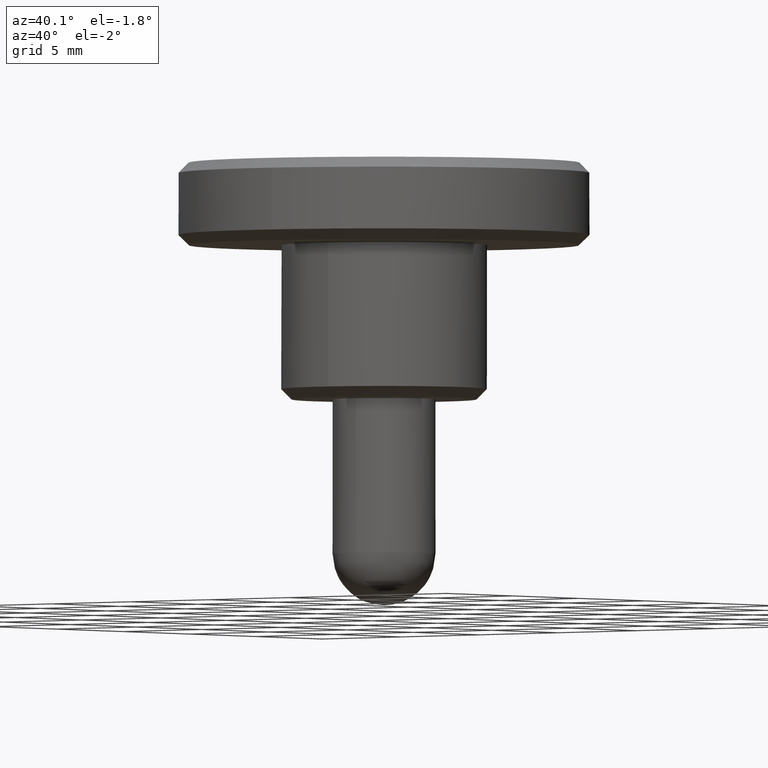
[diagram: clean part render]
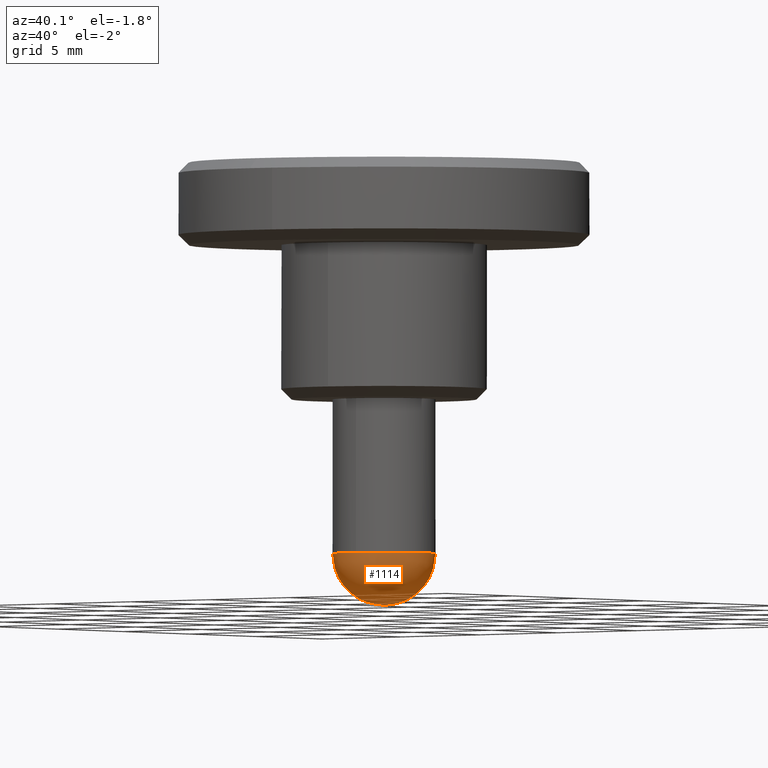
[diagram: same view with one face highlighted and labeled with its STEP entity id]
A machine part, auxiliary view. The second image highlights one B-rep face of the part: STEP entity #1114.
In plain terms, the highlighted face is a freeform B-spline surface patch.
Its self-contained STEP definition (entity closure, byte-faithful):
#695=CARTESIAN_POINT('',(0.310320005214538,-2.480665534561975,-7.500000000000000));
#696=VERTEX_POINT('',#695);
#697=CARTESIAN_POINT('',(2.500000000000000,0.0,-7.500000000000000));
#698=VERTEX_POINT('',#697);
#699=CARTESIAN_POINT('',(0.310320005214538,-2.480665534561975,-7.500000000000000));
#700=CARTESIAN_POINT('',(2.500000000000001,-2.206746500348739,-7.500000000000000));
#701=CARTESIAN_POINT('',(2.500000000000000,0.0,-7.500000000000000));
#709=(BOUNDED_CURVE()B_SPLINE_CURVE(2,(#699,#700,#701),.UNSPECIFIED.,.F.,.U.)B_SPLINE_CURVE_WITH_KNOTS((3,3),(0.771473928972736,1.0),.UNSPECIFIED.)CURVE()GEOMETRIC_REPRESENTATION_ITEM()RATIONAL_B_SPLINE_CURVE((0.954005430270770,0.732265053896132,1.0))REPRESENTATION_ITEM(''));
#710=EDGE_CURVE('',#696,#698,#709,.T.);
#712=CARTESIAN_POINT('',(-0.021811797363553,2.499904847284221,-7.500000000000020));
#713=VERTEX_POINT('',#712);
#714=CARTESIAN_POINT('',(2.500000000000000,0.0,-7.500000000000000));
#715=CARTESIAN_POINT('',(2.500000000000000,2.500000000000000,-7.500000000000000));
#716=CARTESIAN_POINT('',(0.0,2.500000000000000,-7.500000000000000));
#717=CARTESIAN_POINT('',(-0.010906106230911,2.500000000000000,-7.500000000000000));
#718=CARTESIAN_POINT('',(-0.021811797363553,2.499904847284221,-7.500000000000020));
#726=(BOUNDED_CURVE()B_SPLINE_CURVE(2,(#714,#715,#716,#717,#718),.UNSPECIFIED.,.F.,.U.)B_SPLINE_CURVE_WITH_KNOTS((3,2,3),(0.0,0.250000000000000,0.251539574350004),.UNSPECIFIED.)CURVE()GEOMETRIC_REPRESENTATION_ITEM()RATIONAL_B_SPLINE_CURVE((1.0,0.707106781186548,1.0,0.998196276452099,0.996414768636269))REPRESENTATION_ITEM(''));
#727=EDGE_CURVE('',#698,#713,#726,.T.);
#802=CARTESIAN_POINT('',(-2.500000000000000,0.0,-7.500000000000000));
#803=VERTEX_POINT('',#802);
#804=CARTESIAN_POINT('',(-2.500000000000000,0.0,-7.500000000000000));
#805=CARTESIAN_POINT('',(-2.500000000000000,-2.500000000000000,-7.500000000000000));
#806=CARTESIAN_POINT('',(0.0,-2.500000000000000,-7.500000000000000));
#807=CARTESIAN_POINT('',(0.155762318848879,-2.500000000000000,-7.500000000000001));
#808=CARTESIAN_POINT('',(0.310320005214538,-2.480665534561974,-7.500000000000000));
#816=(BOUNDED_CURVE()B_SPLINE_CURVE(2,(#804,#805,#806,#807,#808),.UNSPECIFIED.,.F.,.U.)B_SPLINE_CURVE_WITH_KNOTS((3,2,3),(0.500000000000000,0.750000000000000,0.771473928972736),.UNSPECIFIED.)CURVE()GEOMETRIC_REPRESENTATION_ITEM()RATIONAL_B_SPLINE_CURVE((1.0,0.707106781186548,1.0,0.974841727290415,0.954005430270769))REPRESENTATION_ITEM(''));
#817=EDGE_CURVE('',#803,#696,#816,.T.);
#851=CARTESIAN_POINT('',(-0.021811797363553,2.499904847284221,-7.500000000000020));
#852=CARTESIAN_POINT('',(-2.499999999999999,2.478282528757553,-7.499999999999999));
#853=CARTESIAN_POINT('',(-2.500000000000000,0.0,-7.500000000000000));
#861=(BOUNDED_CURVE()B_SPLINE_CURVE(2,(#851,#852,#853),.UNSPECIFIED.,.F.,.U.)B_SPLINE_CURVE_WITH_KNOTS((3,3),(0.251539574350004,0.500000000000000),.UNSPECIFIED.)CURVE()GEOMETRIC_REPRESENTATION_ITEM()RATIONAL_B_SPLINE_CURVE((0.996414768636269,0.708910504734449,1.0))REPRESENTATION_ITEM(''));
#862=EDGE_CURVE('',#713,#803,#861,.T.);
#1064=CARTESIAN_POINT('',(-1.638763825265861,1.638763825265861,-6.562500000000001));
#1065=CARTESIAN_POINT('',(-1.484163464391723,1.978884619188965,-6.886792452830187));
#1066=CARTESIAN_POINT('',(-0.624290981053662,2.497163924214647,-7.380952380952382));
#1067=CARTESIAN_POINT('',(0.624290981053662,2.497163924214647,-7.380952380952382));
#1068=CARTESIAN_POINT('',(1.484163464391723,1.978884619188965,-6.886792452830187));
#1069=CARTESIAN_POINT('',(1.638763825265861,1.638763825265861,-6.562500000000001));
#1070=CARTESIAN_POINT('',(-1.978884619188965,1.484163464391723,-6.886792452830187));
#1071=CARTESIAN_POINT('',(-1.872872943160985,1.872872943160985,-7.380952380952382));
#1072=CARTESIAN_POINT('',(-0.845813587233993,2.537440761701979,-8.225806451612899));
#1073=CARTESIAN_POINT('',(0.845813587233993,2.537440761701979,-8.225806451612899));
#1074=CARTESIAN_POINT('',(1.872872943160985,1.872872943160985,-7.380952380952382));
#1075=CARTESIAN_POINT('',(1.978884619188965,1.484163464391723,-6.886792452830187));
#1076=CARTESIAN_POINT('',(-2.497163924214647,0.624290981053662,-7.380952380952382));
#1077=CARTESIAN_POINT('',(-2.537440761701979,0.845813587233993,-8.225806451612899));
#1078=CARTESIAN_POINT('',(-1.311011060212690,1.311011060212689,-10.0));
#1079=CARTESIAN_POINT('',(1.311011060212690,1.311011060212689,-10.0));
#1080=CARTESIAN_POINT('',(2.537440761701979,0.845813587233993,-8.225806451612899));
#1081=CARTESIAN_POINT('',(2.497163924214647,0.624290981053662,-7.380952380952382));
#1082=CARTESIAN_POINT('',(-2.497163924214647,-0.624290981053662,-7.380952380952382));
#1083=CARTESIAN_POINT('',(-2.537440761701979,-0.845813587233994,-8.225806451612899));
#1084=CARTESIAN_POINT('',(-1.311011060212690,-1.311011060212691,-10.0));
#1085=CARTESIAN_POINT('',(1.311011060212690,-1.311011060212691,-10.0));
#1086=CARTESIAN_POINT('',(2.537440761701979,-0.845813587233994,-8.225806451612899));
#1087=CARTESIAN_POINT('',(2.497163924214647,-0.624290981053662,-7.380952380952382));
#1088=CARTESIAN_POINT('',(-1.978884619188965,-1.484163464391723,-6.886792452830187));
#1089=CARTESIAN_POINT('',(-1.872872943160985,-1.872872943160985,-7.380952380952382));
#1090=CARTESIAN_POINT('',(-0.845813587233993,-2.537440761701980,-8.225806451612899));
#1091=CARTESIAN_POINT('',(0.845813587233993,-2.537440761701980,-8.225806451612899));
#1092=CARTESIAN_POINT('',(1.872872943160985,-1.872872943160985,-7.380952380952382));
#1093=CARTESIAN_POINT('',(1.978884619188965,-1.484163464391723,-6.886792452830187));
#1094=CARTESIAN_POINT('',(-1.638763825265861,-1.638763825265861,-6.562499999999997));
#1095=CARTESIAN_POINT('',(-1.484163464391723,-1.978884619188964,-6.886792452830187));
#1096=CARTESIAN_POINT('',(-0.624290981053662,-2.497163924214647,-7.380952380952382));
#1097=CARTESIAN_POINT('',(0.624290981053662,-2.497163924214647,-7.380952380952382));
#1098=CARTESIAN_POINT('',(1.484163464391723,-1.978884619188964,-6.886792452830187));
#1099=CARTESIAN_POINT('',(1.638763825265861,-1.638763825265861,-6.562499999999997));
#1107=(BOUNDED_SURFACE()B_SPLINE_SURFACE(2,2,((#1064,#1070,#1076,#1082,#1088,#1094),(#1065,#1071,#1077,#1083,#1089,#1095),(#1066,#1072,#1078,#1084,#1090,#1096),(#1067,#1073,#1079,#1085,#1091,#1097),(#1068,#1074,#1080,#1086,#1092,#1098),(#1069,#1075,#1081,#1087,#1093,#1099)),.UNSPECIFIED.,.F.,.F.,.U.)B_SPLINE_SURFACE_WITH_KNOTS((3,1,1,1,3),(3,1,1,1,3),(0.0,2.305074391582752,4.610148783165504,6.915223174748256,9.220297566331007),(0.0,2.305074391582753,4.610148783165506,6.915223174748258,9.220297566331011),.UNSPECIFIED.)GEOMETRIC_REPRESENTATION_ITEM()RATIONAL_B_SPLINE_SURFACE(((3.200000000000003,2.650000000000002,2.100000000000001,2.100000000000001,2.650000000000002,3.200000000000003),(2.650000000000002,2.100000000000001,1.550000000000001,1.550000000000001,2.100000000000001,2.650000000000002),(2.100000000000001,1.550000000000001,1.0,1.0,1.550000000000001,2.100000000000001),(2.100000000000001,1.550000000000001,1.0,1.0,1.550000000000001,2.100000000000001),(2.650000000000002,2.100000000000001,1.550000000000001,1.550000000000001,2.100000000000001,2.650000000000002),(3.200000000000003,2.650000000000002,2.100000000000001,2.100000000000001,2.650000000000002,3.200000000000003)))REPRESENTATION_ITEM('')SURFACE());
#1108=ORIENTED_EDGE('',*,*,#710,.F.);
#1109=ORIENTED_EDGE('',*,*,#817,.F.);
#1110=ORIENTED_EDGE('',*,*,#862,.F.);
#1111=ORIENTED_EDGE('',*,*,#727,.F.);
#1112=EDGE_LOOP('',(#1108,#1109,#1110,#1111));
#1113=FACE_OUTER_BOUND('',#1112,.T.);
#1114=ADVANCED_FACE('',(#1113),#1107,.T.);